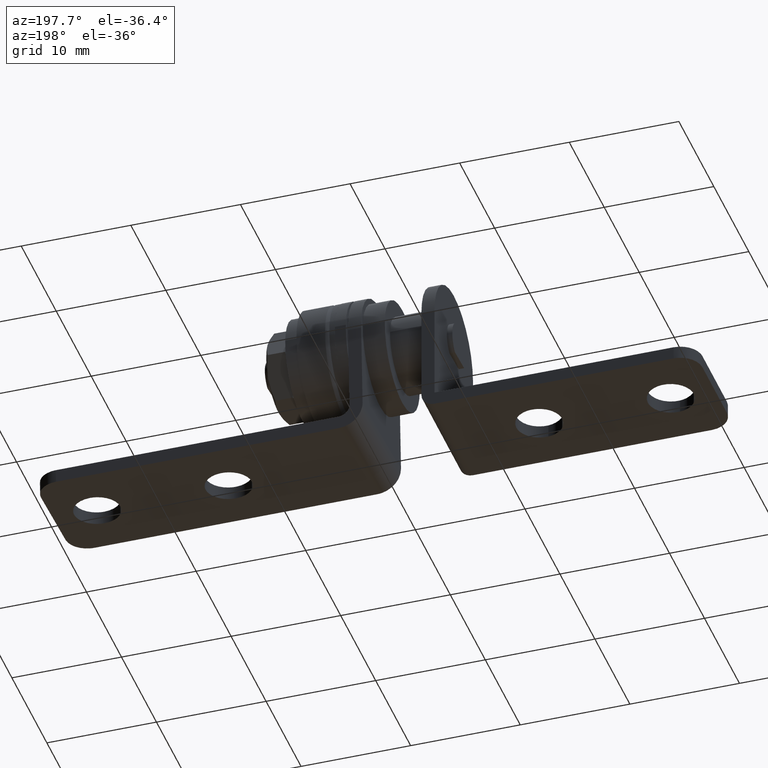
[diagram: clean part render]
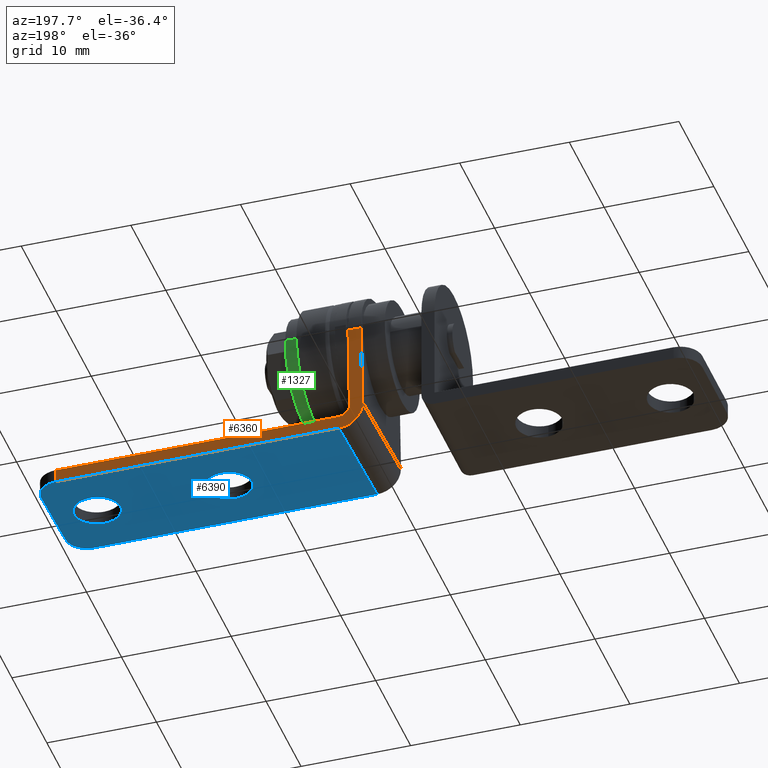
[diagram: same view with three faces highlighted in distinct colors, each labeled with its STEP entity id]
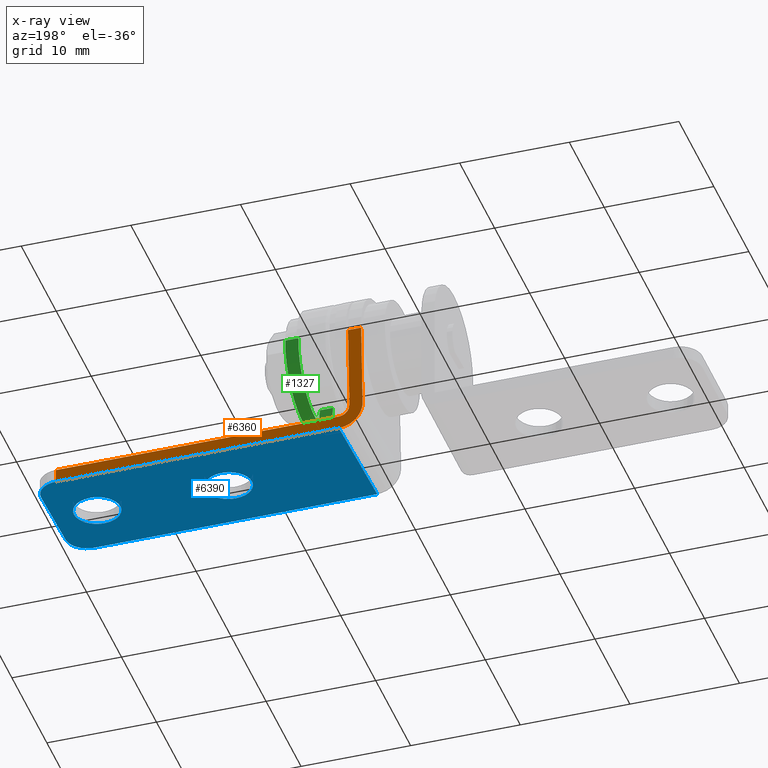
[diagram: x-ray of the same camera — body ghosted, the three highlighted faces saturated]
A machine part, auxiliary view with three faces highlighted in distinct colors.
The next image is the same camera in x-ray (body ghosted, the three faces saturated) — at least one of them is partly hidden behind the body in this view.
Their STEP definitions:

[orange] entity #6360 — the highlighted face is a freeform B-spline surface patch.
#5993=CARTESIAN_POINT('',(1.200000000000000,5.084241982455130,-8.077158130421958));
#5994=VERTEX_POINT('',#5993);
#6000=CARTESIAN_POINT('',(1.199999999999980,5.492462441150150,-0.287847759336289));
#6001=VERTEX_POINT('',#6000);
#6002=CARTESIAN_POINT('',(1.200000000000000,5.084241982455130,-8.077158130421958));
#6003=CARTESIAN_POINT('',(1.199999999999980,5.492462441150150,-0.287847759336289));
#6004=QUASI_UNIFORM_CURVE('',1,(#6002,#6003),.UNSPECIFIED.,.F.,.U.);
#6005=EDGE_CURVE('',#5994,#6001,#6004,.T.);
#6116=CARTESIAN_POINT('',(28.0,4.969102878720631,-10.274143106882020));
#6117=VERTEX_POINT('',#6116);
#6133=CARTESIAN_POINT('',(28.0,5.031906026212180,-9.075787665176529));
#6134=VERTEX_POINT('',#6133);
#6135=CARTESIAN_POINT('',(28.0,5.031906026212180,-9.075787665176529));
#6136=CARTESIAN_POINT('',(28.0,4.969102878720631,-10.274143106882020));
#6137=QUASI_UNIFORM_CURVE('',1,(#6135,#6136),.UNSPECIFIED.,.F.,.U.);
#6138=EDGE_CURVE('',#6134,#6117,#6137,.T.);
#6194=CARTESIAN_POINT('',(0.0,5.084241982455130,-8.077158130421958));
#6195=VERTEX_POINT('',#6194);
#6201=CARTESIAN_POINT('',(2.200000000000000,4.969102878720631,-10.274143106882020));
#6202=VERTEX_POINT('',#6201);
#6203=CARTESIAN_POINT('',(2.200000000000000,4.969102878720636,-10.274143106882020));
#6204=CARTESIAN_POINT('',(0.0,4.969102878720635,-10.274143106882020));
#6205=CARTESIAN_POINT('',(0.0,5.084241982455130,-8.077158130421958));
#6213=(BOUNDED_CURVE()B_SPLINE_CURVE(2,(#6203,#6204,#6205),.UNSPECIFIED.,.F.,.U.)CURVE()GEOMETRIC_REPRESENTATION_ITEM()QUASI_UNIFORM_CURVE()RATIONAL_B_SPLINE_CURVE((1.0,0.707106781186548,1.0))REPRESENTATION_ITEM(''));
#6214=EDGE_CURVE('',#6202,#6195,#6213,.T.);
#6253=CARTESIAN_POINT('',(2.200000000000000,5.031906026212180,-9.075787665176529));
#6254=VERTEX_POINT('',#6253);
#6260=CARTESIAN_POINT('',(1.200000000000000,5.084241982455130,-8.077158130421958));
#6261=CARTESIAN_POINT('',(1.200000000000000,5.031906026212178,-9.075787665176533));
#6262=CARTESIAN_POINT('',(2.200000000000000,5.031906026212178,-9.075787665176533));
#6270=(BOUNDED_CURVE()B_SPLINE_CURVE(2,(#6260,#6261,#6262),.UNSPECIFIED.,.F.,.U.)CURVE()GEOMETRIC_REPRESENTATION_ITEM()QUASI_UNIFORM_CURVE()RATIONAL_B_SPLINE_CURVE((1.0,0.707106781186548,1.0))REPRESENTATION_ITEM(''));
#6271=EDGE_CURVE('',#5994,#6254,#6270,.T.);
#6288=CARTESIAN_POINT('',(2.200000000000000,5.031906026212180,-9.075787665176529));
#6289=CARTESIAN_POINT('',(28.0,5.031906026212180,-9.075787665176529));
#6290=QUASI_UNIFORM_CURVE('',1,(#6288,#6289),.UNSPECIFIED.,.F.,.U.);
#6291=EDGE_CURVE('',#6254,#6134,#6290,.T.);
#6331=CARTESIAN_POINT('',(-1.398599945730568,4.942961069591650,-10.772958540136560));
#6332=CARTESIAN_POINT('',(-1.398599945730568,5.518604264316730,0.210967941771557));
#6333=CARTESIAN_POINT('',(29.398600696749099,4.942961069591650,-10.772958540136560));
#6334=CARTESIAN_POINT('',(29.398600696749099,5.518604264316730,0.210967941771557));
#6335=B_SPLINE_SURFACE_WITH_KNOTS('',1,1,((#6331,#6333),(#6332,#6334)),.UNSPECIFIED.,.F.,.F.,.U.,(2,2),(2,2),(0.0,10.999000229457019),(0.0,30.797200642479659),.UNSPECIFIED.);
#6336=ORIENTED_EDGE('',*,*,#6291,.T.);
#6337=ORIENTED_EDGE('',*,*,#6138,.T.);
#6338=CARTESIAN_POINT('',(2.200000000000000,4.969102878720631,-10.274143106882020));
#6339=CARTESIAN_POINT('',(28.0,4.969102878720631,-10.274143106882020));
#6340=QUASI_UNIFORM_CURVE('',1,(#6338,#6339),.UNSPECIFIED.,.F.,.U.);
#6341=EDGE_CURVE('',#6202,#6117,#6340,.T.);
#6342=ORIENTED_EDGE('',*,*,#6341,.F.);
#6343=ORIENTED_EDGE('',*,*,#6214,.T.);
#6344=CARTESIAN_POINT('',(0.0,5.492462441150150,-0.287847759336289));
#6345=VERTEX_POINT('',#6344);
#6346=CARTESIAN_POINT('',(0.0,5.084241982455130,-8.077158130421958));
#6347=CARTESIAN_POINT('',(0.0,5.492462441150150,-0.287847759336289));
#6348=QUASI_UNIFORM_CURVE('',1,(#6346,#6347),.UNSPECIFIED.,.F.,.U.);
#6349=EDGE_CURVE('',#6195,#6345,#6348,.T.);
#6350=ORIENTED_EDGE('',*,*,#6349,.T.);
#6351=CARTESIAN_POINT('',(0.0,5.492462441150150,-0.287847759336289));
#6352=CARTESIAN_POINT('',(1.199999999999980,5.492462441150150,-0.287847759336289));
#6353=QUASI_UNIFORM_CURVE('',1,(#6351,#6352),.UNSPECIFIED.,.F.,.U.);
#6354=EDGE_CURVE('',#6345,#6001,#6353,.T.);
#6355=ORIENTED_EDGE('',*,*,#6354,.T.);
#6356=ORIENTED_EDGE('',*,*,#6005,.F.);
#6357=ORIENTED_EDGE('',*,*,#6271,.T.);
#6358=EDGE_LOOP('',(#6336,#6337,#6342,#6343,#6350,#6355,#6356,#6357));
#6359=FACE_OUTER_BOUND('',#6358,.T.);
#6360=ADVANCED_FACE('',(#6359),#6335,.T.);

[blue] entity #6390 — the highlighted face is a freeform B-spline surface patch.
#5470=CARTESIAN_POINT('',(16.096083076684781,-0.395333325681191,-9.993004918303782));
#5471=VERTEX_POINT('',#5470);
#5477=CARTESIAN_POINT('',(14.0,-2.620481585414051,-9.876389839435657));
#5478=VERTEX_POINT('',#5477);
#5479=CARTESIAN_POINT('',(16.096083076684778,-0.395333325681191,-9.993004918303781));
#5480=CARTESIAN_POINT('',(16.100000000000005,-0.459286689643583,-9.989653264520833));
#5481=CARTESIAN_POINT('',(16.100000000000001,-0.523359562429446,-9.986295347545841));
#5482=CARTESIAN_POINT('',(16.100000000000005,-2.620481585414051,-9.876389839435657));
#5483=CARTESIAN_POINT('',(14.0,-2.620481585414051,-9.876389839435657));
#5491=(BOUNDED_CURVE()B_SPLINE_CURVE(2,(#5479,#5480,#5481,#5482,#5483),.UNSPECIFIED.,.F.,.U.)B_SPLINE_CURVE_WITH_KNOTS((3,2,3),(0.239332962240430,0.250000000000000,0.500000000000000),.UNSPECIFIED.)CURVE()GEOMETRIC_REPRESENTATION_ITEM()RATIONAL_B_SPLINE_CURVE((0.976072041669905,0.987502787901580,1.0,0.707106781186548,1.0))REPRESENTATION_ITEM(''));
#5492=EDGE_CURVE('',#5471,#5478,#5491,.T.);
#5494=CARTESIAN_POINT('',(11.903916923315220,-0.651385799177700,-9.979585776787900));
#5495=VERTEX_POINT('',#5494);
#5496=CARTESIAN_POINT('',(14.0,-2.620481585414051,-9.876389839435657));
#5497=CARTESIAN_POINT('',(12.024517259515685,-2.620481585414051,-9.876389839435657));
#5498=CARTESIAN_POINT('',(11.903916923315228,-0.651385799177701,-9.979585776787902));
#5506=(BOUNDED_CURVE()B_SPLINE_CURVE(2,(#5496,#5497,#5498),.UNSPECIFIED.,.F.,.U.)B_SPLINE_CURVE_WITH_KNOTS((3,3),(0.500000000000000,0.739332962240430),.UNSPECIFIED.)CURVE()GEOMETRIC_REPRESENTATION_ITEM()RATIONAL_B_SPLINE_CURVE((1.0,0.719603993284968,0.976072041669905))REPRESENTATION_ITEM(''));
#5507=EDGE_CURVE('',#5478,#5495,#5506,.T.);
#5581=CARTESIAN_POINT('',(14.0,1.573762460555159,-10.096200855656020));
#5582=VERTEX_POINT('',#5581);
#5583=CARTESIAN_POINT('',(11.903916923315228,-0.651385799177701,-9.979585776787902));
#5584=CARTESIAN_POINT('',(11.900000000000000,-0.587432435215309,-9.982937430570850));
#5585=CARTESIAN_POINT('',(11.900000000000000,-0.523359562429446,-9.986295347545841));
#5586=CARTESIAN_POINT('',(11.900000000000000,1.573762460555160,-10.096200855656024));
#5587=CARTESIAN_POINT('',(14.0,1.573762460555159,-10.096200855656020));
#5595=(BOUNDED_CURVE()B_SPLINE_CURVE(2,(#5583,#5584,#5585,#5586,#5587),.UNSPECIFIED.,.F.,.U.)B_SPLINE_CURVE_WITH_KNOTS((3,2,3),(0.739332962240430,0.750000000000000,1.0),.UNSPECIFIED.)CURVE()GEOMETRIC_REPRESENTATION_ITEM()RATIONAL_B_SPLINE_CURVE((0.976072041669905,0.987502787901580,1.0,0.707106781186548,1.0))REPRESENTATION_ITEM(''));
#5596=EDGE_CURVE('',#5495,#5582,#5595,.T.);
#5598=CARTESIAN_POINT('',(14.0,1.573762460555159,-10.096200855656020));
#5599=CARTESIAN_POINT('',(15.975482740484322,1.573762460555159,-10.096200855656024));
#5600=CARTESIAN_POINT('',(16.096083076684778,-0.395333325681191,-9.993004918303781));
#5608=(BOUNDED_CURVE()B_SPLINE_CURVE(2,(#5598,#5599,#5600),.UNSPECIFIED.,.F.,.U.)B_SPLINE_CURVE_WITH_KNOTS((3,3),(0.0,0.239332962240430),.UNSPECIFIED.)CURVE()GEOMETRIC_REPRESENTATION_ITEM()RATIONAL_B_SPLINE_CURVE((1.0,0.719603993284968,0.976072041669905))REPRESENTATION_ITEM(''));
#5609=EDGE_CURVE('',#5582,#5471,#5608,.T.);
#5652=CARTESIAN_POINT('',(28.096083076684781,-0.395333325681191,-9.993004918303782));
#5653=VERTEX_POINT('',#5652);
#5659=CARTESIAN_POINT('',(26.0,-2.620481585414051,-9.876389839435657));
#5660=VERTEX_POINT('',#5659);
#5661=CARTESIAN_POINT('',(28.096083076684778,-0.395333325681191,-9.993004918303781));
#5662=CARTESIAN_POINT('',(28.099999999999998,-0.459286689643583,-9.989653264520833));
#5663=CARTESIAN_POINT('',(28.100000000000001,-0.523359562429446,-9.986295347545841));
#5664=CARTESIAN_POINT('',(28.100000000000001,-2.620481585414051,-9.876389839435657));
#5665=CARTESIAN_POINT('',(26.0,-2.620481585414051,-9.876389839435657));
#5673=(BOUNDED_CURVE()B_SPLINE_CURVE(2,(#5661,#5662,#5663,#5664,#5665),.UNSPECIFIED.,.F.,.U.)B_SPLINE_CURVE_WITH_KNOTS((3,2,3),(0.239332962240430,0.250000000000000,0.500000000000000),.UNSPECIFIED.)CURVE()GEOMETRIC_REPRESENTATION_ITEM()RATIONAL_B_SPLINE_CURVE((0.976072041669905,0.987502787901580,1.0,0.707106781186548,1.0))REPRESENTATION_ITEM(''));
#5674=EDGE_CURVE('',#5653,#5660,#5673,.T.);
#5676=CARTESIAN_POINT('',(23.903916923315219,-0.651385799177701,-9.979585776787900));
#5677=VERTEX_POINT('',#5676);
#5678=CARTESIAN_POINT('',(26.0,-2.620481585414051,-9.876389839435657));
#5679=CARTESIAN_POINT('',(24.024517259515687,-2.620481585414051,-9.876389839435657));
#5680=CARTESIAN_POINT('',(23.903916923315226,-0.651385799177701,-9.979585776787902));
#5688=(BOUNDED_CURVE()B_SPLINE_CURVE(2,(#5678,#5679,#5680),.UNSPECIFIED.,.F.,.U.)B_SPLINE_CURVE_WITH_KNOTS((3,3),(0.500000000000000,0.739332962240430),.UNSPECIFIED.)CURVE()GEOMETRIC_REPRESENTATION_ITEM()RATIONAL_B_SPLINE_CURVE((1.0,0.719603993284968,0.976072041669905))REPRESENTATION_ITEM(''));
#5689=EDGE_CURVE('',#5660,#5677,#5688,.T.);
#5763=CARTESIAN_POINT('',(26.0,1.573762460555159,-10.096200855656020));
#5764=VERTEX_POINT('',#5763);
#5765=CARTESIAN_POINT('',(23.903916923315226,-0.651385799177701,-9.979585776787902));
#5766=CARTESIAN_POINT('',(23.900000000000002,-0.587432435215309,-9.982937430570850));
#5767=CARTESIAN_POINT('',(23.899999999999999,-0.523359562429446,-9.986295347545841));
#5768=CARTESIAN_POINT('',(23.899999999999991,1.573762460555160,-10.096200855656024));
#5769=CARTESIAN_POINT('',(26.0,1.573762460555159,-10.096200855656020));
#5777=(BOUNDED_CURVE()B_SPLINE_CURVE(2,(#5765,#5766,#5767,#5768,#5769),.UNSPECIFIED.,.F.,.U.)B_SPLINE_CURVE_WITH_KNOTS((3,2,3),(0.739332962240430,0.750000000000000,1.0),.UNSPECIFIED.)CURVE()GEOMETRIC_REPRESENTATION_ITEM()RATIONAL_B_SPLINE_CURVE((0.976072041669905,0.987502787901580,1.0,0.707106781186548,1.0))REPRESENTATION_ITEM(''));
#5778=EDGE_CURVE('',#5677,#5764,#5777,.T.);
#5780=CARTESIAN_POINT('',(26.0,1.573762460555159,-10.096200855656020));
#5781=CARTESIAN_POINT('',(27.975482740484317,1.573762460555159,-10.096200855656024));
#5782=CARTESIAN_POINT('',(28.096083076684778,-0.395333325681191,-9.993004918303781));
#5790=(BOUNDED_CURVE()B_SPLINE_CURVE(2,(#5780,#5781,#5782),.UNSPECIFIED.,.F.,.U.)B_SPLINE_CURVE_WITH_KNOTS((3,3),(0.0,0.239332962240430),.UNSPECIFIED.)CURVE()GEOMETRIC_REPRESENTATION_ITEM()RATIONAL_B_SPLINE_CURVE((1.0,0.719603993284968,0.976072041669905))REPRESENTATION_ITEM(''));
#5791=EDGE_CURVE('',#5764,#5653,#5790,.T.);
#6072=CARTESIAN_POINT('',(28.0,-6.015822003579600,-9.698447588209639));
#6073=VERTEX_POINT('',#6072);
#6079=CARTESIAN_POINT('',(30.0,-4.018562934070454,-9.803119500695530));
#6080=VERTEX_POINT('',#6079);
#6081=CARTESIAN_POINT('',(30.0,-4.018562934070454,-9.803119500695530));
#6082=CARTESIAN_POINT('',(30.000000000000004,-6.015822003579602,-9.698447588209643));
#6083=CARTESIAN_POINT('',(28.0,-6.015822003579602,-9.698447588209643));
#6091=(BOUNDED_CURVE()B_SPLINE_CURVE(2,(#6081,#6082,#6083),.UNSPECIFIED.,.F.,.U.)CURVE()GEOMETRIC_REPRESENTATION_ITEM()QUASI_UNIFORM_CURVE()RATIONAL_B_SPLINE_CURVE((1.0,0.707106781186548,1.0))REPRESENTATION_ITEM(''));
#6092=EDGE_CURVE('',#6080,#6073,#6091,.T.);
#6116=CARTESIAN_POINT('',(28.0,4.969102878720631,-10.274143106882020));
#6117=VERTEX_POINT('',#6116);
#6118=CARTESIAN_POINT('',(30.0,2.971843809211485,-10.169471194396140));
#6119=VERTEX_POINT('',#6118);
#6120=CARTESIAN_POINT('',(28.0,4.969102878720633,-10.274143106882009));
#6121=CARTESIAN_POINT('',(30.000000000000004,4.969102878720633,-10.274143106882008));
#6122=CARTESIAN_POINT('',(30.0,2.971843809211485,-10.169471194396120));
#6130=(BOUNDED_CURVE()B_SPLINE_CURVE(2,(#6120,#6121,#6122),.UNSPECIFIED.,.F.,.U.)CURVE()GEOMETRIC_REPRESENTATION_ITEM()QUASI_UNIFORM_CURVE()RATIONAL_B_SPLINE_CURVE((1.0,0.707106781186548,1.0))REPRESENTATION_ITEM(''));
#6131=EDGE_CURVE('',#6117,#6119,#6130,.T.);
#6179=CARTESIAN_POINT('',(2.200000000000000,-6.015822003579600,-9.698447588209639));
#6180=VERTEX_POINT('',#6179);
#6201=CARTESIAN_POINT('',(2.200000000000000,4.969102878720631,-10.274143106882020));
#6202=VERTEX_POINT('',#6201);
#6216=CARTESIAN_POINT('',(2.200000000000000,-6.015822003579600,-9.698447588209639));
#6217=CARTESIAN_POINT('',(2.200000000000000,4.969102878720631,-10.274143106882020));
#6218=QUASI_UNIFORM_CURVE('',1,(#6216,#6217),.UNSPECIFIED.,.F.,.U.);
#6219=EDGE_CURVE('',#6180,#6202,#6218,.T.);
#6320=CARTESIAN_POINT('',(30.0,-4.018562934070454,-9.803119500695530));
#6321=CARTESIAN_POINT('',(30.0,2.971843809211485,-10.169471194396140));
#6322=QUASI_UNIFORM_CURVE('',1,(#6320,#6321),.UNSPECIFIED.,.F.,.U.);
#6323=EDGE_CURVE('',#6080,#6119,#6322,.T.);
#6338=CARTESIAN_POINT('',(2.200000000000000,4.969102878720631,-10.274143106882020));
#6339=CARTESIAN_POINT('',(28.0,4.969102878720631,-10.274143106882020));
#6340=QUASI_UNIFORM_CURVE('',1,(#6338,#6339),.UNSPECIFIED.,.F.,.U.);
#6341=EDGE_CURVE('',#6202,#6117,#6340,.T.);
#6361=CARTESIAN_POINT('',(0.811390053881795,-6.564518980159581,-9.669691598167765));
#6362=CARTESIAN_POINT('',(0.811390053881795,5.517800149939258,-10.302899112365250));
#6363=CARTESIAN_POINT('',(31.388610691772310,-6.564518980159581,-9.669691598167765));
#6364=CARTESIAN_POINT('',(31.388610691772310,5.517800149939258,-10.302899112365250));
#6365=B_SPLINE_SURFACE_WITH_KNOTS('',1,1,((#6361,#6363),(#6362,#6364)),.UNSPECIFIED.,.F.,.F.,.U.,(2,2),(2,2),(0.0,12.098900252402631),(0.0,30.577220637890520),.UNSPECIFIED.);
#6366=ORIENTED_EDGE('',*,*,#6341,.T.);
#6367=ORIENTED_EDGE('',*,*,#6131,.T.);
#6368=ORIENTED_EDGE('',*,*,#6323,.F.);
#6369=ORIENTED_EDGE('',*,*,#6092,.T.);
#6370=CARTESIAN_POINT('',(2.200000000000000,-6.015822003579600,-9.698447588209639));
#6371=CARTESIAN_POINT('',(28.0,-6.015822003579600,-9.698447588209639));
#6372=QUASI_UNIFORM_CURVE('',1,(#6370,#6371),.UNSPECIFIED.,.F.,.U.);
#6373=EDGE_CURVE('',#6180,#6073,#6372,.T.);
#6374=ORIENTED_EDGE('',*,*,#6373,.F.);
#6375=ORIENTED_EDGE('',*,*,#6219,.T.);
#6376=EDGE_LOOP('',(#6366,#6367,#6368,#6369,#6374,#6375));
#6377=FACE_OUTER_BOUND('',#6376,.T.);
#6378=ORIENTED_EDGE('',*,*,#5689,.F.);
#6379=ORIENTED_EDGE('',*,*,#5674,.F.);
#6380=ORIENTED_EDGE('',*,*,#5791,.F.);
#6381=ORIENTED_EDGE('',*,*,#5778,.F.);
#6382=EDGE_LOOP('',(#6378,#6379,#6380,#6381));
#6383=FACE_BOUND('',#6382,.T.);
#6384=ORIENTED_EDGE('',*,*,#5507,.F.);
#6385=ORIENTED_EDGE('',*,*,#5492,.F.);
#6386=ORIENTED_EDGE('',*,*,#5609,.F.);
#6387=ORIENTED_EDGE('',*,*,#5596,.F.);
#6388=EDGE_LOOP('',(#6384,#6385,#6386,#6387));
#6389=FACE_BOUND('',#6388,.T.);
#6390=ADVANCED_FACE('',(#6377,#6383,#6389),#6365,.T.);

[green] entity #1327 — the highlighted face is a freeform B-spline surface patch.
#1008=CARTESIAN_POINT('',(5.900000000000000,4.940767252184832,0.302190270753328));
#1009=VERTEX_POINT('',#1008);
#1023=CARTESIAN_POINT('',(5.900000000000000,3.987300E-015,-4.950000000000000));
#1024=VERTEX_POINT('',#1023);
#1025=CARTESIAN_POINT('',(5.900000000000002,4.940767252184835,0.302190270753327));
#1026=CARTESIAN_POINT('',(5.900000000000000,4.950000000000006,0.151236178355986));
#1027=CARTESIAN_POINT('',(5.900000000000000,4.950000000000005,0.0));
#1028=CARTESIAN_POINT('',(5.900000000000000,4.950000000000005,-4.950000000000000));
#1029=CARTESIAN_POINT('',(5.900000000000000,3.987300E-015,-4.950000000000000));
#1037=(BOUNDED_CURVE()B_SPLINE_CURVE(2,(#1025,#1026,#1027,#1028,#1029),.UNSPECIFIED.,.F.,.U.)B_SPLINE_CURVE_WITH_KNOTS((3,2,3),(0.239332962240020,0.250000000000000,0.500000000000000),.UNSPECIFIED.)CURVE()GEOMETRIC_REPRESENTATION_ITEM()RATIONAL_B_SPLINE_CURVE((0.976072041669026,0.987502787901099,1.0,0.707106781186547,1.0))REPRESENTATION_ITEM(''));
#1038=EDGE_CURVE('',#1009,#1024,#1037,.T.);
#1040=CARTESIAN_POINT('',(5.900000000000000,-4.940767252184825,-0.302190270753328));
#1041=VERTEX_POINT('',#1040);
#1042=CARTESIAN_POINT('',(5.900000000000000,3.987300E-015,-4.950000000000000));
#1043=CARTESIAN_POINT('',(5.900000000000000,-4.656495031130511,-4.950000000000000));
#1044=CARTESIAN_POINT('',(5.900000000000002,-4.940767252184826,-0.302190270753327));
#1052=(BOUNDED_CURVE()B_SPLINE_CURVE(2,(#1042,#1043,#1044),.UNSPECIFIED.,.F.,.U.)B_SPLINE_CURVE_WITH_KNOTS((3,3),(0.500000000000000,0.739332962240020),.UNSPECIFIED.)CURVE()GEOMETRIC_REPRESENTATION_ITEM()RATIONAL_B_SPLINE_CURVE((1.0,0.719603993285448,0.976072041669026))REPRESENTATION_ITEM(''));
#1053=EDGE_CURVE('',#1024,#1041,#1052,.T.);
#1261=CARTESIAN_POINT('',(7.130000000000001,4.940767252188244,0.302190270697542));
#1262=CARTESIAN_POINT('',(7.130000000000001,5.242957522885786,-4.638576981490699));
#1263=CARTESIAN_POINT('',(7.130000000000001,0.302190270697546,-4.940767252188240));
#1264=CARTESIAN_POINT('',(7.130000000000001,-4.638576981490695,-5.242957522885781));
#1265=CARTESIAN_POINT('',(7.130000000000001,-4.940767252188237,-0.302190270697542));
#1266=CARTESIAN_POINT('',(5.869249999999999,4.940767252188244,0.302190270697542));
#1267=CARTESIAN_POINT('',(5.869249999999999,5.242957522885786,-4.638576981490699));
#1268=CARTESIAN_POINT('',(5.869249999999999,0.302190270697546,-4.940767252188240));
#1269=CARTESIAN_POINT('',(5.869249999999999,-4.638576981490695,-5.242957522885781));
#1270=CARTESIAN_POINT('',(5.869249999999999,-4.940767252188237,-0.302190270697542));
#1278=(BOUNDED_SURFACE()B_SPLINE_SURFACE(2,1,((#1261,#1266),(#1262,#1267),(#1263,#1268),(#1264,#1269),(#1265,#1270)),.UNSPECIFIED.,.F.,.F.,.U.)B_SPLINE_SURFACE_WITH_KNOTS((3,2,3),(2,2),(0.0,8.201428534987281,16.402857069974559),(0.0,1.0),.UNSPECIFIED.)GEOMETRIC_REPRESENTATION_ITEM()RATIONAL_B_SPLINE_SURFACE(((1.0,1.0),(0.707106781186548,0.707106781186548),(1.0,1.0),(0.707106781186548,0.707106781186548),(1.0,1.0)))REPRESENTATION_ITEM('')SURFACE());
#1279=ORIENTED_EDGE('',*,*,#1038,.F.);
#1280=CARTESIAN_POINT('',(7.099999999999999,4.940767252184832,0.302190270753327));
#1281=VERTEX_POINT('',#1280);
#1282=CARTESIAN_POINT('',(7.099999999999999,4.940767252184832,0.302190270753327));
#1283=CARTESIAN_POINT('',(5.900000000000000,4.940767252184832,0.302190270753328));
#1284=QUASI_UNIFORM_CURVE('',1,(#1282,#1283),.UNSPECIFIED.,.F.,.U.);
#1285=EDGE_CURVE('',#1281,#1009,#1284,.T.);
#1286=ORIENTED_EDGE('',*,*,#1285,.F.);
#1287=CARTESIAN_POINT('',(7.100000000000000,3.987300E-015,-4.950000000000000));
#1288=VERTEX_POINT('',#1287);
#1289=CARTESIAN_POINT('',(7.100000000000001,4.940767252184835,0.302190270753327));
#1290=CARTESIAN_POINT('',(7.100000000000000,4.950000000000006,0.151236178355986));
#1291=CARTESIAN_POINT('',(7.100000000000000,4.950000000000005,0.0));
#1292=CARTESIAN_POINT('',(7.100000000000001,4.950000000000005,-4.950000000000000));
#1293=CARTESIAN_POINT('',(7.100000000000000,3.987300E-015,-4.950000000000000));
#1301=(BOUNDED_CURVE()B_SPLINE_CURVE(2,(#1289,#1290,#1291,#1292,#1293),.UNSPECIFIED.,.F.,.U.)B_SPLINE_CURVE_WITH_KNOTS((3,2,3),(0.239332962240020,0.250000000000000,0.500000000000000),.UNSPECIFIED.)CURVE()GEOMETRIC_REPRESENTATION_ITEM()RATIONAL_B_SPLINE_CURVE((0.976072041669026,0.987502787901099,1.0,0.707106781186547,1.0))REPRESENTATION_ITEM(''));
#1302=EDGE_CURVE('',#1281,#1288,#1301,.T.);
#1303=ORIENTED_EDGE('',*,*,#1302,.T.);
#1304=CARTESIAN_POINT('',(7.100000000000000,-4.940767252184825,-0.302190270753328));
#1305=VERTEX_POINT('',#1304);
#1306=CARTESIAN_POINT('',(7.100000000000000,3.987300E-015,-4.950000000000000));
#1307=CARTESIAN_POINT('',(7.100000000000001,-4.656495031130511,-4.950000000000000));
#1308=CARTESIAN_POINT('',(7.100000000000001,-4.940767252184826,-0.302190270753327));
#1316=(BOUNDED_CURVE()B_SPLINE_CURVE(2,(#1306,#1307,#1308),.UNSPECIFIED.,.F.,.U.)B_SPLINE_CURVE_WITH_KNOTS((3,3),(0.500000000000000,0.739332962240020),.UNSPECIFIED.)CURVE()GEOMETRIC_REPRESENTATION_ITEM()RATIONAL_B_SPLINE_CURVE((1.0,0.719603993285448,0.976072041669026))REPRESENTATION_ITEM(''));
#1317=EDGE_CURVE('',#1288,#1305,#1316,.T.);
#1318=ORIENTED_EDGE('',*,*,#1317,.T.);
#1319=CARTESIAN_POINT('',(7.100000000000000,-4.940767252184825,-0.302190270753328));
#1320=CARTESIAN_POINT('',(5.900000000000000,-4.940767252184825,-0.302190270753328));
#1321=QUASI_UNIFORM_CURVE('',1,(#1319,#1320),.UNSPECIFIED.,.F.,.U.);
#1322=EDGE_CURVE('',#1305,#1041,#1321,.T.);
#1323=ORIENTED_EDGE('',*,*,#1322,.T.);
#1324=ORIENTED_EDGE('',*,*,#1053,.F.);
#1325=EDGE_LOOP('',(#1279,#1286,#1303,#1318,#1323,#1324));
#1326=FACE_OUTER_BOUND('',#1325,.T.);
#1327=ADVANCED_FACE('',(#1326),#1278,.T.);